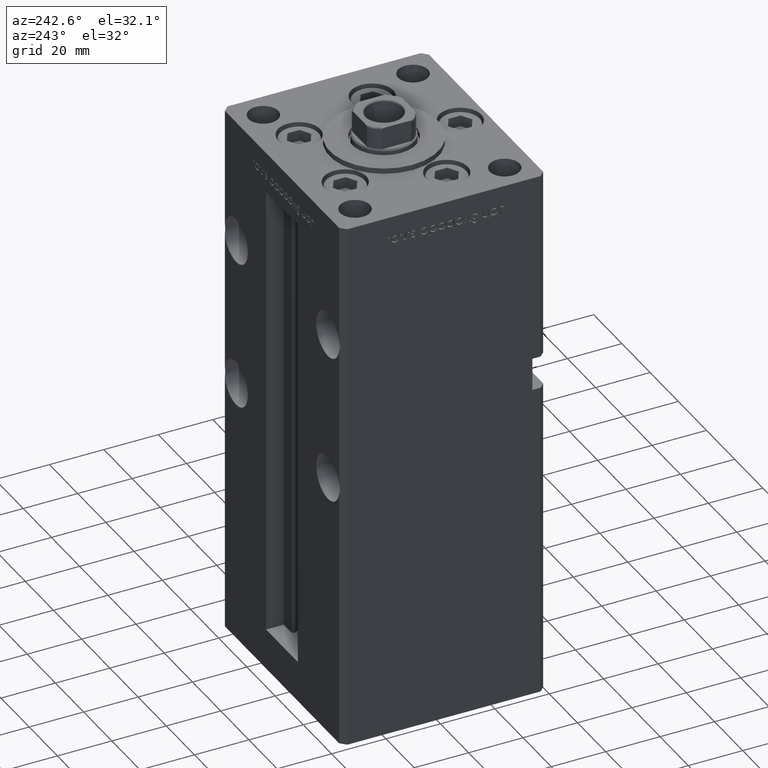
[diagram: clean part render]
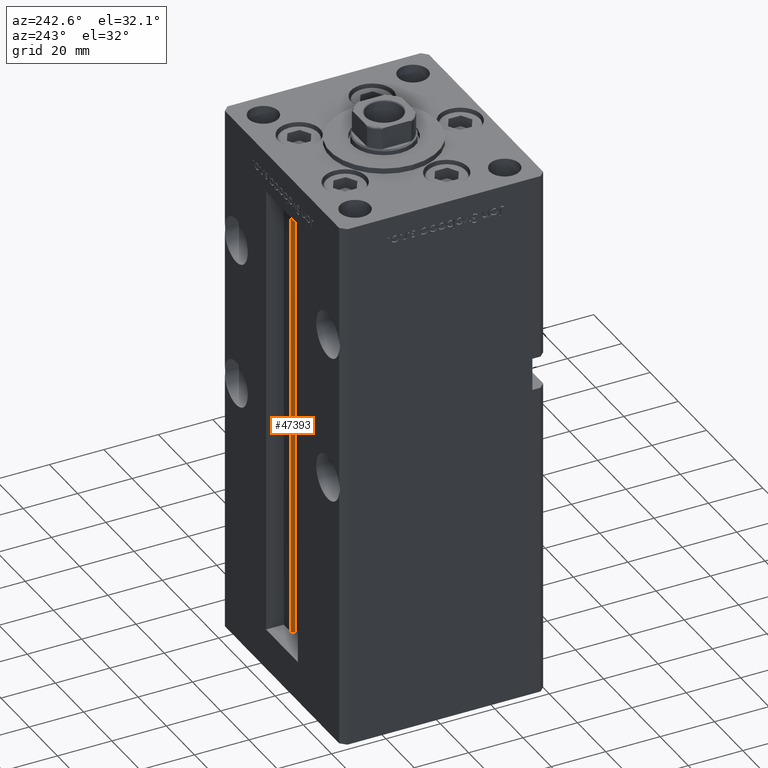
[diagram: same view with one face highlighted and labeled with its STEP entity id]
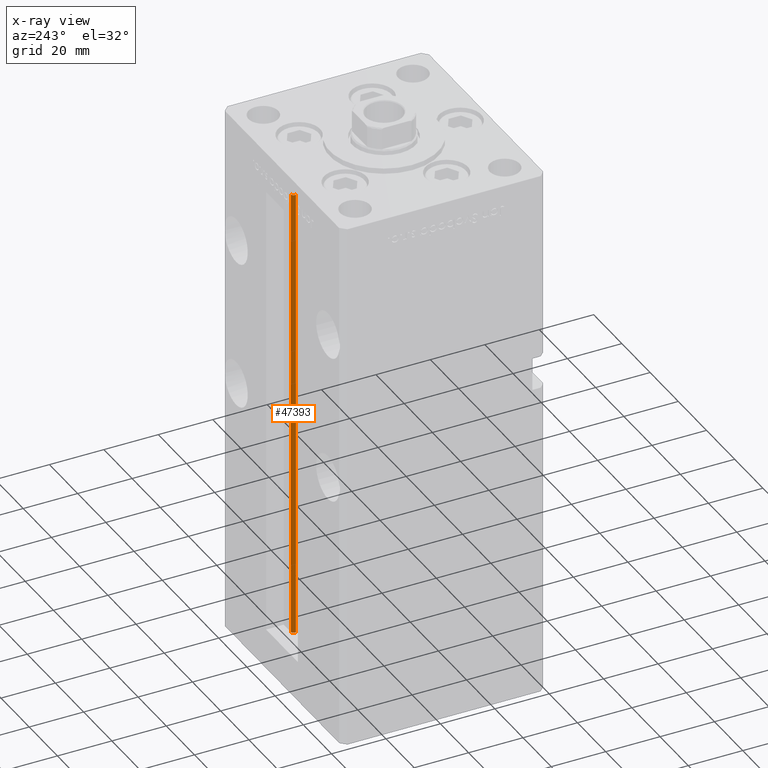
[diagram: x-ray of the same camera — body ghosted, the highlighted face saturated]
A machine part, auxiliary view. The second image highlights one B-rep face of the part: STEP entity #47393.
The next image is the same camera in x-ray: the body ghosted, the highlighted face saturated — about 0% of this face is hidden behind the body in this view.
In plain terms, the highlighted cylindrical surface (edge-blend (fillet) strip) has radius 0.9333 mm, axis along (0, 0, 1).
Its self-contained STEP definition (entity closure, byte-faithful):
#861 = CARTESIAN_POINT ( 'NONE',  ( 5.375042956467947164, 29.59999999999899245, 0.000000000000000000 ) ) ;
#3871 = ORIENTED_EDGE ( 'NONE', *, *, #10409, .T. ) ;
#4730 = CARTESIAN_POINT ( 'NONE',  ( 6.183333333333997928, 30.06666666666599852, 0.000000000000000000 ) ) ;
#5101 = CIRCLE ( 'NONE', #41179, 0.9333333333340008142 ) ;
#6489 = CYLINDRICAL_SURFACE ( 'NONE', #46795, 0.9333333333340008142 ) ;
#7106 = VERTEX_POINT ( 'NONE', #41806 ) ;
#7264 = CARTESIAN_POINT ( 'NONE',  ( 6.183333333333997928, 30.06666666666599852, 0.000000000000000000 ) ) ;
#10409 = EDGE_CURVE ( 'NONE', #19963, #15160, #22388, .T. ) ;
#10487 = EDGE_LOOP ( 'NONE', ( #48896, #28118, #3871, #45605 ) ) ;
#13861 = EDGE_CURVE ( 'NONE', #15160, #47506, #46770, .T. ) ;
#15160 = VERTEX_POINT ( 'NONE', #24558 ) ;
#16612 = CARTESIAN_POINT ( 'NONE',  ( 6.183333333333997928, 30.06666666666599852, 168.5000000000000000 ) ) ;
#16849 = CARTESIAN_POINT ( 'NONE',  ( 5.375042956467947164, 29.59999999999899245, 0.000000000000000000 ) ) ;
#19661 = VECTOR ( 'NONE', #22332, 1000.000000000000000 ) ;
#19963 = VERTEX_POINT ( 'NONE', #861 ) ;
#22332 = DIRECTION ( 'NONE',  ( -0.000000000000000000, -0.000000000000000000, 1.000000000000000000 ) ) ;
#22388 = LINE ( 'NONE', #16849, #44929 ) ;
#22889 = DIRECTION ( 'NONE',  ( 1.000000000000000000, 0.000000000000000000, 0.000000000000000000 ) ) ;
#24558 = CARTESIAN_POINT ( 'NONE',  ( 5.375042956467944499, 29.59999999999899600, 168.5000000000000000 ) ) ;
#24638 = DIRECTION ( 'NONE',  ( 1.000000000000000000, 0.000000000000000000, 0.000000000000000000 ) ) ;
#25008 = CARTESIAN_POINT ( 'NONE',  ( 6.183333333333997928, 31.00000000000000000, 168.5000000000000000 ) ) ;
#28118 = ORIENTED_EDGE ( 'NONE', *, *, #34009, .F. ) ;
#28591 = EDGE_CURVE ( 'NONE', #7106, #47506, #47626, .T. ) ;
#30408 = CARTESIAN_POINT ( 'NONE',  ( 6.183333333333997928, 31.00000000000000000, 0.000000000000000000 ) ) ;
#32166 = AXIS2_PLACEMENT_3D ( 'NONE', #16612, #36784, #48630 ) ;
#34009 = EDGE_CURVE ( 'NONE', #19963, #7106, #5101, .T. ) ;
#36784 = DIRECTION ( 'NONE',  ( 0.000000000000000000, 0.000000000000000000, -1.000000000000000000 ) ) ;
#37805 = DIRECTION ( 'NONE',  ( -0.000000000000000000, -0.000000000000000000, -1.000000000000000000 ) ) ;
#41179 = AXIS2_PLACEMENT_3D ( 'NONE', #4730, #37805, #24638 ) ;
#41806 = CARTESIAN_POINT ( 'NONE',  ( 6.183333333333997928, 31.00000000000000000, 0.000000000000000000 ) ) ;
#44822 = DIRECTION ( 'NONE',  ( -0.000000000000000000, -0.000000000000000000, 1.000000000000000000 ) ) ;
#44929 = VECTOR ( 'NONE', #44822, 1000.000000000000000 ) ;
#45605 = ORIENTED_EDGE ( 'NONE', *, *, #13861, .T. ) ;
#46770 = CIRCLE ( 'NONE', #32166, 0.9333333333340008142 ) ;
#46795 = AXIS2_PLACEMENT_3D ( 'NONE', #7264, #52472, #22889 ) ;
#47393 = ADVANCED_FACE ( 'NONE', ( #48423 ), #6489, .T. ) ;
#47506 = VERTEX_POINT ( 'NONE', #25008 ) ;
#47626 = LINE ( 'NONE', #30408, #19661 ) ;
#48423 = FACE_OUTER_BOUND ( 'NONE', #10487, .T. ) ;
#48630 = DIRECTION ( 'NONE',  ( 1.000000000000000000, 0.000000000000000000, 0.000000000000000000 ) ) ;
#48896 = ORIENTED_EDGE ( 'NONE', *, *, #28591, .F. ) ;
#52472 = DIRECTION ( 'NONE',  ( -0.000000000000000000, -0.000000000000000000, 1.000000000000000000 ) ) ;